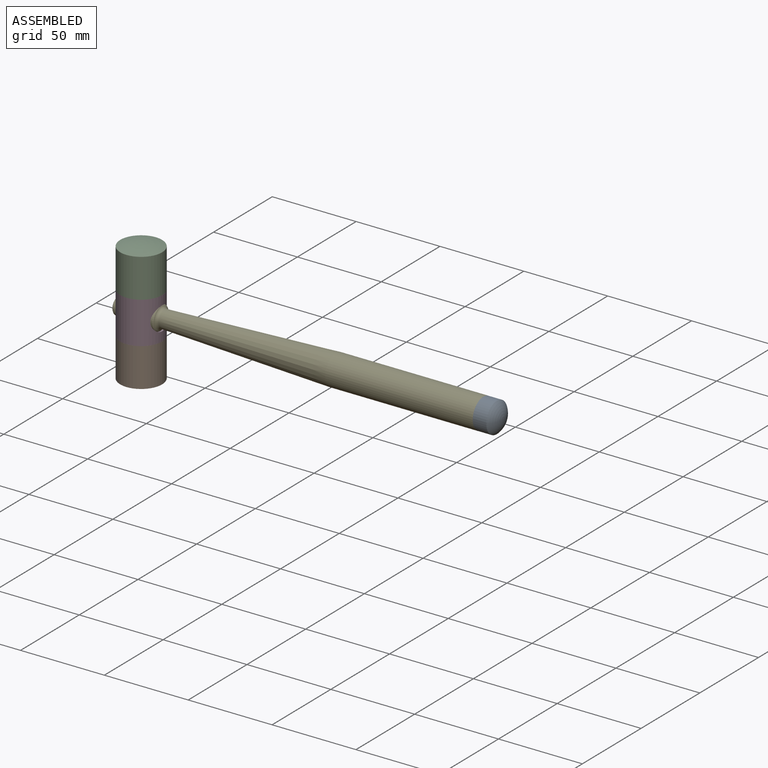
[diagram: assembled view]
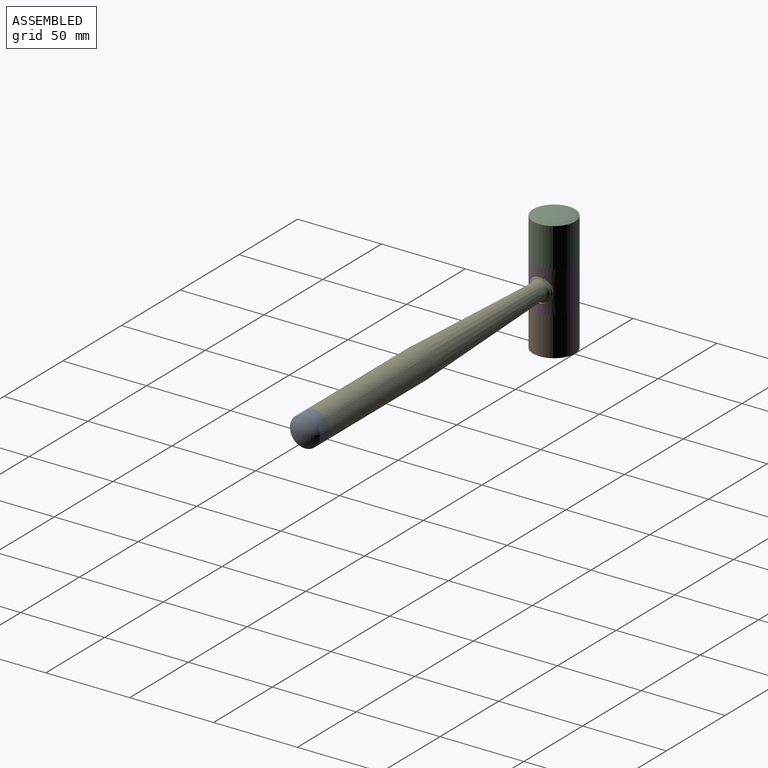
[diagram: assembled view, second angle]
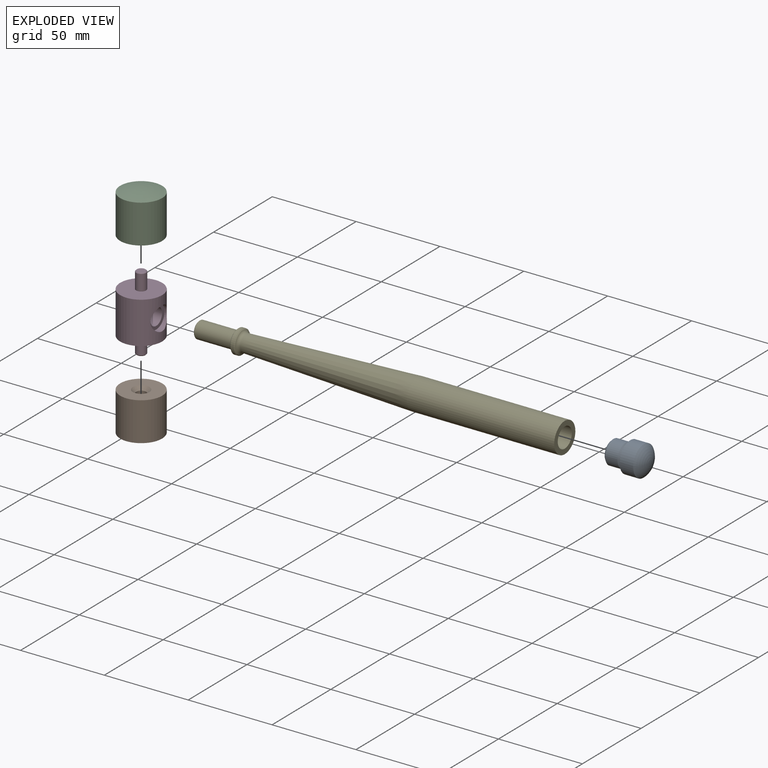
[diagram: exploded view]
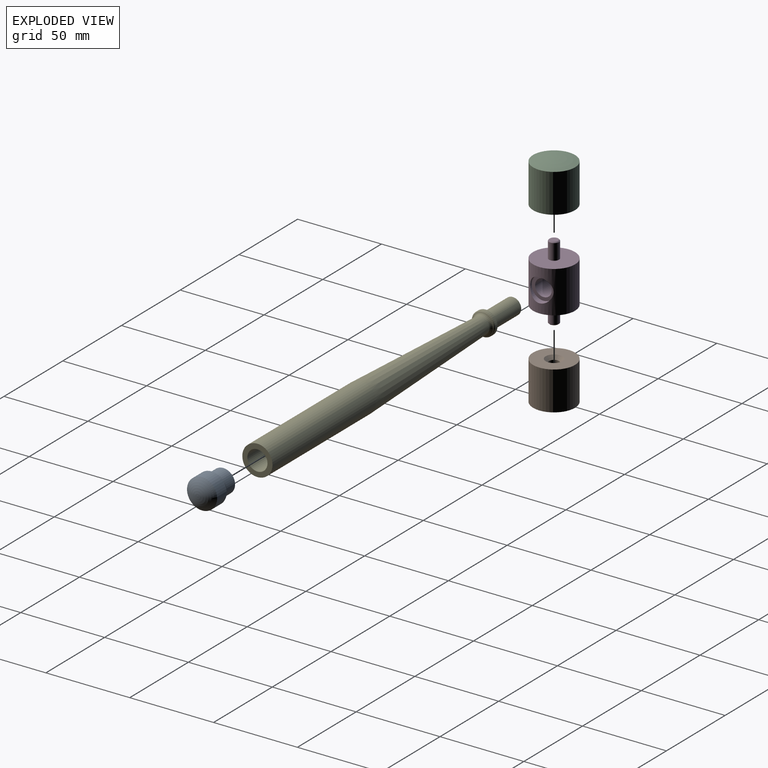
[diagram: exploded view, second angle]
ASSEMBLY  parts=5 mates=4
PART A: 8 faces, bbox 18x23x18 mm
  f0: plane 18x18mm, normal (0,-1,0), area 141.4mm2, adj f1,f5
  f1: cylinder r=6mm len=12mm, axis (0,-1,0), area 61.2mm2, adj f0,f7
  f2: cylinder r=7mm len=14mm, axis (0,-1,0), area 324.5mm2, adj f6,f7
  f3: plane 12x12mm, normal (0,-1,0), area 113.1mm2, adj f6
  f4: sphere r=12.34mm, area 302.2mm2, adj f5
  f5: cylinder r=9mm len=18mm, axis (0,-1,0), area 458.3mm2, adj f0,f4
  f6: cone r=6mm half-angle=45deg, axis (0,1,0), area 57.8mm2, adj f2,f3
  f7: cone r=7mm half-angle=45deg, axis (0,-1,0), area 57.8mm2, adj f1,f2
PART B: 6 faces, bbox 25x25x25 mm
  f0: plane 25x25mm, normal (1,0,0), area 412.3mm2, adj f1,f5
  f1: cylinder r=12.5mm len=25mm, axis (1,0,0), area 1814.2mm2, adj f0,f2
  f2: sphere r=42.05mm, area 502.2mm2, adj f1
  f3: cone r=3mm half-angle=59deg, axis (1,0,0), area 33mm2, adj f4
  f4: cylinder r=3mm len=13mm, axis (1,0,0), area 245mm2, adj f3,f5
  f5: cone r=3mm half-angle=45deg, axis (1,0,0), area 71.1mm2, adj f0,f4
PART C: same geometry as B
PART D: 12 faces, bbox 25x25x45 mm
  f0: cylinder r=12.5mm len=25mm, axis (0,0,1), area 1722.8mm2, adj f1,f2,f7,f8
  f1: cylinder r=5mm len=21.5mm, axis (-1,0,0), area 659.2mm2, adj f0,f9
  f2: plane 25x25mm, normal (0,0,1), area 462.6mm2, adj f0,f3
  f3: cylinder r=3mm len=9.5mm, axis (0,0,1), area 179.1mm2, adj f2,f11
  f4: plane 5x5mm, normal (0,0,1), area 19.6mm2, adj f11
  f5: plane 5x5mm, normal (0,0,-1), area 19.6mm2, adj f10
  f6: cylinder r=3mm len=9.5mm, axis (0,0,1), area 179.1mm2, adj f7,f10
  f7: plane 25x25mm, normal (0,0,-1), area 462.6mm2, adj f0,f6
  f8: cylinder r=7mm len=14mm, axis (-1,0,0), area 108mm2, adj f0,f9
  f9: plane 14x14mm, normal (1,0,0), area 75.4mm2, adj f1,f8
  f10: cone r=3mm half-angle=45deg, axis (0,0,1), area 12.2mm2, adj f5,f6
  f11: cone r=2.5mm half-angle=45deg, axis (0,0,-1), area 12.2mm2, adj f3,f4
PART E: 13 faces, bbox 18x218x18 mm
  f0: cone r=6mm half-angle=59deg, axis (0,1,0), area 131.9mm2, adj f1
  f1: cylinder r=6mm len=100mm, axis (0,1,0), area 3769.9mm2, adj f0,f2
  f2: plane 18x18mm, normal (0,1,0), area 141.4mm2, adj f1,f3
  f3: cylinder r=9mm len=88mm, axis (0,1,0), area 4976.3mm2, adj f2,f4
  f4: cone r=5mm half-angle=2.2deg, axis (0,1,0), area 4514.4mm2, adj f3,f12
  f5: cylinder r=7mm len=14mm, axis (0,1,0), area 88mm2, adj f10,f11
  f6: plane 13x13mm, normal (0,-1,0), area 54.2mm2, adj f7,f11
  f7: cylinder r=5mm len=22.5mm, axis (0,1,0), area 706.9mm2, adj f6,f9
  f8: plane 9x9mm, normal (0,-1,0), area 63.6mm2, adj f9
  f9: cone r=5mm half-angle=45deg, axis (0,1,0), area 21.1mm2, adj f7,f8
  f10: cone r=6.5mm half-angle=45deg, axis (0,-1,0), area 30mm2, adj f5,f12
  f11: cone r=7mm half-angle=45deg, axis (0,1,0), area 30mm2, adj f5,f6
  f12: torus R=7.08mm, axis (0,-1,0), area 92.1mm2, adj f4,f10
PLACE A rot(axis=(0.71,0.71,0),180deg) t=(153.62,-19.61,21.94)mm
PLACE B rot(axis=(0.58,-0.58,0.58),120deg) t=(-39.38,-19.61,-2.97)mm
PLACE C rot(axis=(-0.58,0.58,0.58),120deg) t=(-39.38,-19.61,46.85)mm
PLACE D t=(-39.38,-19.61,21.94)mm
PLACE E rot(axis=(-0.58,-0.58,-0.58),120deg) t=(61.02,-19.61,21.94)mm
MATE fastened E.f1 <-> D.f1  axis (-1,0,0) through (-30.38,-19.61,21.94)mm
MATE fastened A.f1 <-> E.f12  axis (-1,0,0) through (164.62,-19.61,21.94)mm
MATE fastened C.f3 <-> D.f0  axis (0,0,-1) through (-39.38,-19.61,34.44)mm
MATE fastened B.f3 <-> D.f0  axis (0,0,1) through (-39.38,-19.61,9.44)mm
